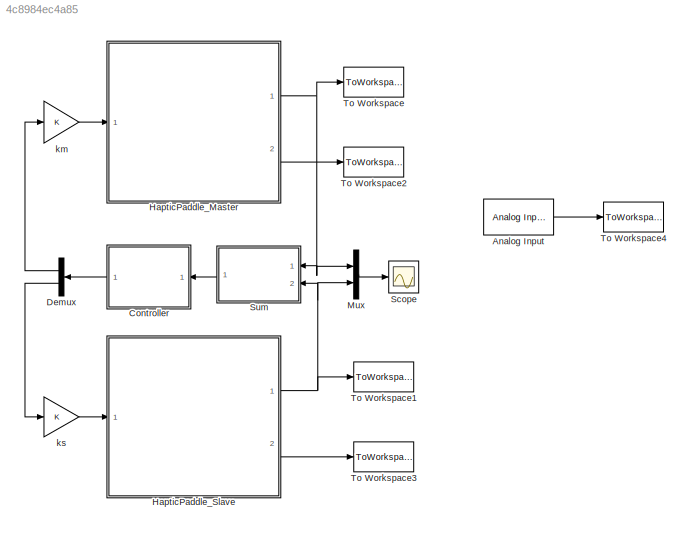
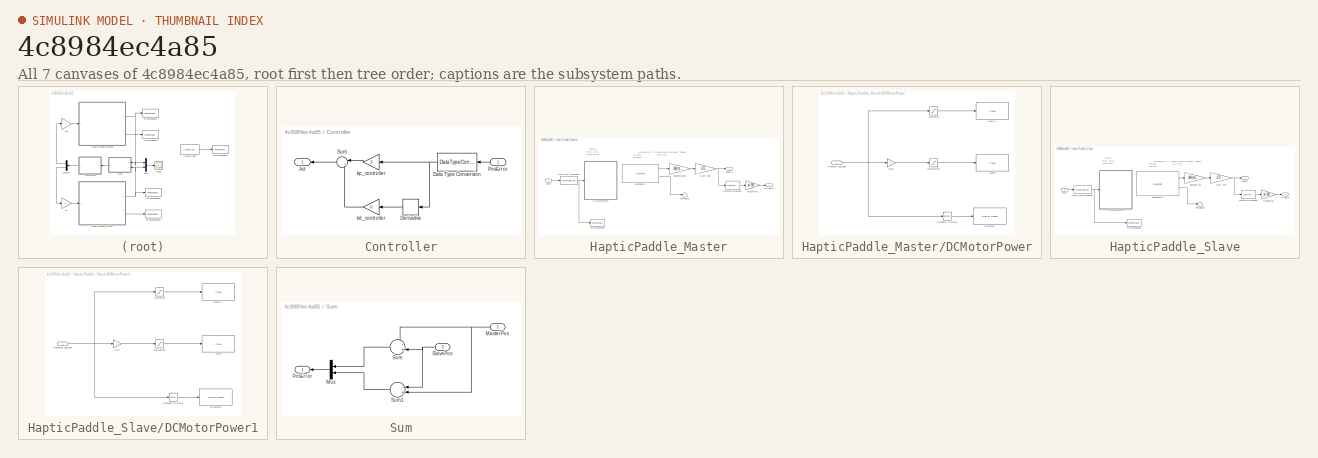
[diagram: thumbnail index - all 7 canvases of the model, root first then tree order]
MODEL slx_4c8984ec4a85
KIND model
CONFIG AbsTol = auto
CONFIG EnableMultiTasking = on
CONFIG FixedStep = 0.005
CONFIG MaxStep = auto
CONFIG MinStep = auto
CONFIG RelTol = 1e-3
CONFIG SampleTimeConstraint = Unconstrained
CONFIG Solver = FixedStepAuto
CONFIG SolverName = FixedStepAuto
CONFIG StartTime = 0.0
CONFIG StopTime = Inf
BLOCK [Reference] Analog Input  REF=arduinolib/Analog Input
  Ports = [0, 1]
  SourceBlock = arduinolib/Analog Input
  SourceProductBaseCode = ARDUINO
  SourceProductName = Simulink Support Package for Arduino Hardware
  SourceType = Arduino Analog Input
BLOCK [SubSystem] Controller
  Ports = [1, 1]
  RequestExecContextInheritance = off
  Variant = off
BLOCK [Outport] Controller/Act
  IconDisplay = Port number
BLOCK [DataTypeConversion] Controller/Data Type Conversion
  RndMeth = Floor
  SaturateOnIntegerOverflow = off
BLOCK [Derivative] Controller/Derivative
BLOCK [Inport] Controller/PosError
  IconDisplay = Port number
BLOCK [Sum] Controller/Sum
  IconShape = round
  InputSameDT = off
  Inputs = |++
  OutDataTypeStr = Inherit: Inherit via internal rule
  Ports = [2, 1]
  SaturateOnIntegerOverflow = off
BLOCK [Gain] Controller/kd_controller
  Gain = 0
  OutDataTypeStr = Inherit: Inherit via internal rule
  ParamDataTypeStr = Inherit: Inherit via internal rule
  SaturateOnIntegerOverflow = off
BLOCK [Gain] Controller/kp_controller
  Gain = 3
  OutDataTypeStr = Inherit: Inherit via internal rule
  ParamDataTypeStr = Inherit: Inherit via internal rule
  SaturateOnIntegerOverflow = off
BLOCK [Demux] Demux
  DisplayOption = bar
  Outputs = 2
  Ports = [1, 2]
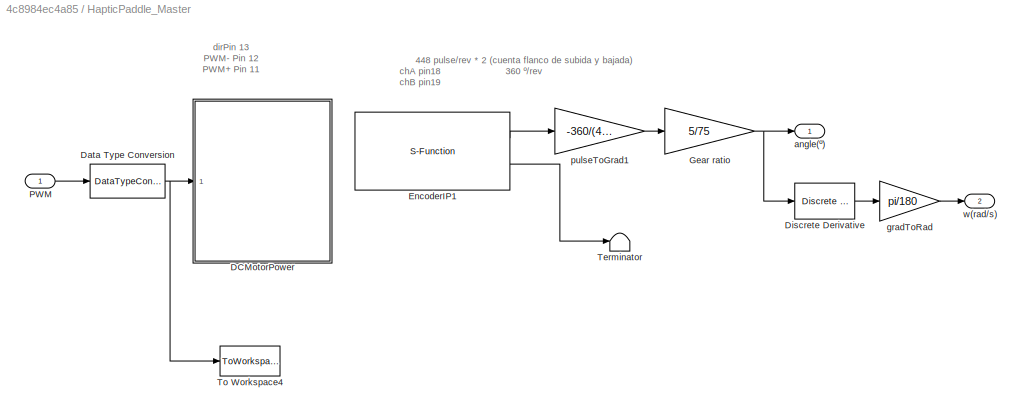
BLOCK [SubSystem] HapticPaddle_Master
  Ports = [1, 2]
  RequestExecContextInheritance = off
  Variant = off
BLOCK [SubSystem] HapticPaddle_Master/DCMotorPower
  Ports = [1]
  RTWFcnNameOpts = Use subsystem name
  RTWFileNameOpts = Use function name
  RTWSystemCode = Reusable function
  RequestExecContextInheritance = off
  Variant = off
BLOCK [Reference] HapticPaddle_Master/DCMotorPower/Compare To Zero1  REF=simulink/Logic and Bit
Operations/Compare
To Zero
  Ports = [1, 1]
  SourceBlock = simulink/Logic and Bit\nOperations/Compare\nTo Zero
  SourceProductBaseCode = SL
  SourceProductName = Simulink
  SourceType = Compare To Zero
BLOCK [Reference] HapticPaddle_Master/DCMotorPower/Direccion  REF=arduinolib/Digital Output
  Ports = [1]
  SourceBlock = arduinolib/Digital Output
  SourceProductBaseCode = ARDUINO
  SourceProductName = Simulink Support Package for Arduino Hardware
  SourceType = Arduino Digital Output
BLOCK [Gain] HapticPaddle_Master/DCMotorPower/Gain
  Gain = -1
  OutDataTypeStr = Inherit: Inherit via internal rule
  ParamDataTypeStr = Inherit: Inherit via internal rule
  SaturateOnIntegerOverflow = off
BLOCK [Reference] HapticPaddle_Master/DCMotorPower/Motor  REF=arduinolib/PWM
  Ports = [1]
  SourceBlock = arduinolib/PWM
  SourceProductBaseCode = ARDUINO
  SourceProductName = Simulink Support Package for Arduino Hardware
  SourceType = Arduino PWM
BLOCK [Reference] HapticPaddle_Master/DCMotorPower/Motor 1  REF=arduinolib/PWM
  Ports = [1]
  SourceBlock = arduinolib/PWM
  SourceProductBaseCode = ARDUINO
  SourceProductName = Simulink Support Package for Arduino Hardware
  SourceType = Arduino PWM
BLOCK [Inport] HapticPaddle_Master/DCMotorPower/Potencia(-255_255) 
  IconDisplay = Port number
  OutDataTypeStr = int16
  VarSizeSig = No
BLOCK [Saturate] HapticPaddle_Master/DCMotorPower/Saturation
  InputPortMap = u0
  LowerLimit = 0
  Ports = [1, 1]
  UpperLimit = 255
BLOCK [Saturate] HapticPaddle_Master/DCMotorPower/Saturation1
  InputPortMap = u0
  LowerLimit = 0
  Ports = [1, 1]
  UpperLimit = 255
BLOCK [DataTypeConversion] HapticPaddle_Master/Data Type Conversion
  OutDataTypeStr = int16
  RndMeth = Floor
  SaturateOnIntegerOverflow = off
BLOCK [Reference] HapticPaddle_Master/Discrete Derivative  REF=simulink/Discrete/Discrete Derivative
  Ports = [1, 1]
  SourceBlock = simulink/Discrete/Discrete Derivative
  SourceProductBaseCode = SL
  SourceProductName = Simulink
  SourceType = Discrete Derivative
BLOCK [S-Function] HapticPaddle_Master/EncoderIP1
  CopyFcn = set_param(gcbh,'LinkStatus','none')
  EnableBusSupport = off
  FunctionName = encoder_code2
  InitFcn = try, set_param(gcb,'FunctionName','encoder_code2'), end
  OpenFcn = sfunctionwizard(gcbh)
  Parameters = uint8(1),uint8(18),uint8(19)
  Ports = [0, 2]
  PreSaveFcn = try, set_param(gcb,'FunctionName','encoder_code2'), end
  SFcnIsStateOwnerBlock = off
  SFunctionDeploymentMode = off
  SFunctionModules = encoder_code2_wrapper
BLOCK [Gain] HapticPaddle_Master/Gear ratio 
  Gain = 5/75
  OutDataTypeStr = Inherit: Inherit via internal rule
  ParamDataTypeStr = Inherit: Inherit via internal rule
  SaturateOnIntegerOverflow = off
BLOCK [Inport] HapticPaddle_Master/PWM
  IconDisplay = Port number
BLOCK [Terminator] HapticPaddle_Master/Terminator
BLOCK [ToWorkspace] HapticPaddle_Master/To Workspace4
  FixptAsFi = on
  MaxDataPoints = inf
  Ports = [1]
  SampleTime = -1
  Save2DSignal = 3-D array (concatenate along third dimension)
  SaveFormat = Structure With Time
  VariableName = MasterPWM
BLOCK [Outport] HapticPaddle_Master/angle(º)
  IconDisplay = Port number
BLOCK [Gain] HapticPaddle_Master/gradToRad
  Gain = pi/180
  OutDataTypeStr = Inherit: Inherit via internal rule
  ParamDataTypeStr = Inherit: Inherit via internal rule
  SaturateOnIntegerOverflow = off
BLOCK [Gain] HapticPaddle_Master/pulseToGrad1
  Gain = -360/(448*2)
  OutDataTypeStr = Inherit: Inherit via internal rule
  ParamDataTypeStr = Inherit: Inherit via internal rule
  SaturateOnIntegerOverflow = off
BLOCK [Outport] HapticPaddle_Master/w(rad//s)
  IconDisplay = Port number
  Port = 2
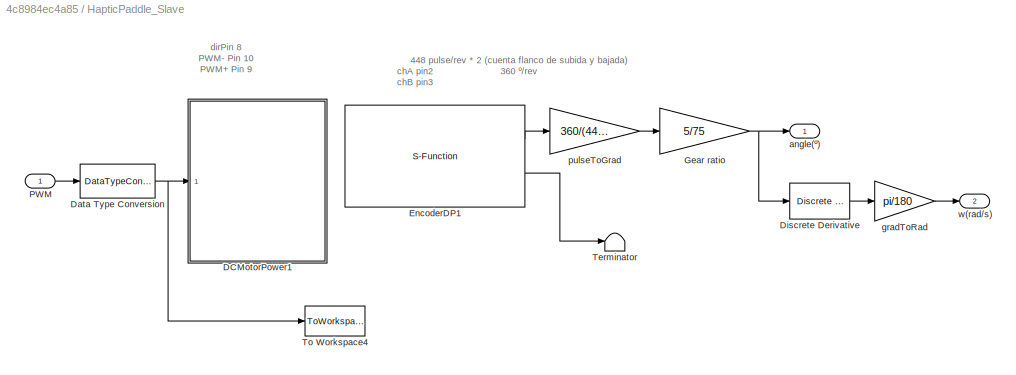
BLOCK [SubSystem] HapticPaddle_Slave
  Ports = [1, 2]
  RequestExecContextInheritance = off
  Variant = off
BLOCK [SubSystem] HapticPaddle_Slave/DCMotorPower1
  Ports = [1]
  RTWFcnNameOpts = Use subsystem name
  RTWFileNameOpts = Use function name
  RTWSystemCode = Reusable function
  RequestExecContextInheritance = off
  Variant = off
BLOCK [Reference] HapticPaddle_Slave/DCMotorPower1/Compare To Zero1  REF=simulink/Logic and Bit
Operations/Compare
To Zero
  Ports = [1, 1]
  SourceBlock = simulink/Logic and Bit\nOperations/Compare\nTo Zero
  SourceProductBaseCode = SL
  SourceProductName = Simulink
  SourceType = Compare To Zero
BLOCK [Reference] HapticPaddle_Slave/DCMotorPower1/Direccion  REF=arduinolib/Digital Output
  Ports = [1]
  SourceBlock = arduinolib/Digital Output
  SourceProductBaseCode = ARDUINO
  SourceProductName = Simulink Support Package for Arduino Hardware
  SourceType = Arduino Digital Output
BLOCK [Gain] HapticPaddle_Slave/DCMotorPower1/Gain
  Gain = -1
  OutDataTypeStr = Inherit: Inherit via internal rule
  ParamDataTypeStr = Inherit: Inherit via internal rule
  SaturateOnIntegerOverflow = off
BLOCK [Reference] HapticPaddle_Slave/DCMotorPower1/Motor  REF=arduinolib/PWM
  Ports = [1]
  SourceBlock = arduinolib/PWM
  SourceProductBaseCode = ARDUINO
  SourceProductName = Simulink Support Package for Arduino Hardware
  SourceType = Arduino PWM
BLOCK [Reference] HapticPaddle_Slave/DCMotorPower1/Motor 1  REF=arduinolib/PWM
  Ports = [1]
  SourceBlock = arduinolib/PWM
  SourceProductBaseCode = ARDUINO
  SourceProductName = Simulink Support Package for Arduino Hardware
  SourceType = Arduino PWM
BLOCK [Inport] HapticPaddle_Slave/DCMotorPower1/Potencia(-255_255) 
  IconDisplay = Port number
  OutDataTypeStr = int16
  VarSizeSig = No
BLOCK [Saturate] HapticPaddle_Slave/DCMotorPower1/Saturation
  InputPortMap = u0
  LowerLimit = 0
  Ports = [1, 1]
  UpperLimit = 255
BLOCK [Saturate] HapticPaddle_Slave/DCMotorPower1/Saturation1
  InputPortMap = u0
  LowerLimit = 0
  Ports = [1, 1]
  UpperLimit = 255
BLOCK [DataTypeConversion] HapticPaddle_Slave/Data Type Conversion
  OutDataTypeStr = int16
  RndMeth = Floor
  SaturateOnIntegerOverflow = off
BLOCK [Reference] HapticPaddle_Slave/Discrete Derivative  REF=simulink/Discrete/Discrete Derivative
  Ports = [1, 1]
  SourceBlock = simulink/Discrete/Discrete Derivative
  SourceProductBaseCode = SL
  SourceProductName = Simulink
  SourceType = Discrete Derivative
BLOCK [S-Function] HapticPaddle_Slave/EncoderDP1
  CopyFcn = set_param(gcbh,'LinkStatus','none')
  EnableBusSupport = off
  FunctionName = encoder_code2
  InitFcn = try, set_param(gcb,'FunctionName','encoder_code2'), end
  OpenFcn = sfunctionwizard(gcbh)
  Parameters = uint8(0),uint8(2),uint8(3)
  Ports = [0, 2]
  PreSaveFcn = try, set_param(gcb,'FunctionName','encoder_code2'), end
  SFcnIsStateOwnerBlock = off
  SFunctionDeploymentMode = off
  SFunctionModules = encoder_code2_wrapper
BLOCK [Gain] HapticPaddle_Slave/Gear ratio 
  Gain = 5/75
  OutDataTypeStr = Inherit: Inherit via internal rule
  ParamDataTypeStr = Inherit: Inherit via internal rule
  SaturateOnIntegerOverflow = off
BLOCK [Inport] HapticPaddle_Slave/PWM
  IconDisplay = Port number
BLOCK [Terminator] HapticPaddle_Slave/Terminator
BLOCK [ToWorkspace] HapticPaddle_Slave/To Workspace4
  FixptAsFi = on
  MaxDataPoints = inf
  Ports = [1]
  SampleTime = -1
  Save2DSignal = 3-D array (concatenate along third dimension)
  SaveFormat = Structure With Time
  VariableName = SlavePWM
BLOCK [Outport] HapticPaddle_Slave/angle(º)
  IconDisplay = Port number
BLOCK [Gain] HapticPaddle_Slave/gradToRad
  Gain = pi/180
  OutDataTypeStr = Inherit: Inherit via internal rule
  ParamDataTypeStr = Inherit: Inherit via internal rule
  SaturateOnIntegerOverflow = off
BLOCK [Gain] HapticPaddle_Slave/pulseToGrad
  Gain = 360/(448*2)
  OutDataTypeStr = Inherit: Inherit via internal rule
  ParamDataTypeStr = Inherit: Inherit via internal rule
  SaturateOnIntegerOverflow = off
BLOCK [Outport] HapticPaddle_Slave/w(rad//s)
  IconDisplay = Port number
  Port = 2
BLOCK [Mux] Mux
  DisplayOption = bar
  Inputs = 2
  Ports = [2, 1]
BLOCK [Scope] Scope
  NumInputPorts = 1
  Ports = [1]
  ScopeSpecificationString = Simulink.scopes.TimeScopeBlockCfg('CurrentConfiguration', extmgr.ConfigurationSet(extmgr.Configuration('Core','General UI',true),extmgr.Configuration('Core','Source UI',true),extmgr.Configuration('Sources','WiredSimulink',true),extmgr.Configuration('Visuals','Time Domain',true,'SerializedDisplays',{struct('MinYLimReal','-1.00000','MaxYLimReal','1.00000','YLabelReal','','MinYLimMag','0.00000','MaxY...<+1364ch>
BLOCK [SubSystem] Sum
  Ports = [2, 1]
  RequestExecContextInheritance = off
  Variant = off
BLOCK [Inport] Sum/MasterPos
  IconDisplay = Port number
BLOCK [Mux] Sum/Mux
  DisplayOption = bar
  Inputs = 2
  Ports = [2, 1]
BLOCK [Outport] Sum/PosError
  IconDisplay = Port number
BLOCK [Inport] Sum/SlavePos
  IconDisplay = Port number
  Port = 2
BLOCK [Sum] Sum/Sum
  IconShape = round
  InputSameDT = off
  Inputs = -+|
  OutDataTypeStr = Inherit: Inherit via internal rule
  Ports = [2, 1]
  SaturateOnIntegerOverflow = off
BLOCK [Sum] Sum/Sum1
  IconShape = round
  InputSameDT = off
  Inputs = -+|
  OutDataTypeStr = Inherit: Inherit via internal rule
  Ports = [2, 1]
  SaturateOnIntegerOverflow = off
BLOCK [ToWorkspace] To Workspace
  FixptAsFi = on
  MaxDataPoints = inf
  Ports = [1]
  SampleTime = -1
  Save2DSignal = 3-D array (concatenate along third dimension)
  SaveFormat = Structure With Time
  VariableName = MasterPos
BLOCK [ToWorkspace] To Workspace1
  FixptAsFi = on
  MaxDataPoints = inf
  Ports = [1]
  SampleTime = -1
  Save2DSignal = 3-D array (concatenate along third dimension)
  SaveFormat = Structure With Time
  VariableName = SlavePos
BLOCK [ToWorkspace] To Workspace2
  FixptAsFi = on
  MaxDataPoints = inf
  Ports = [1]
  SampleTime = -1
  Save2DSignal = 3-D array (concatenate along third dimension)
  SaveFormat = Structure With Time
  VariableName = MasterVel
BLOCK [ToWorkspace] To Workspace3
  FixptAsFi = on
  MaxDataPoints = inf
  Ports = [1]
  SampleTime = -1
  Save2DSignal = 3-D array (concatenate along third dimension)
  SaveFormat = Structure With Time
  VariableName = SlaveVel
BLOCK [ToWorkspace] To Workspace4
  FixptAsFi = on
  MaxDataPoints = inf
  Ports = [1]
  SampleTime = -1
  Save2DSignal = 3-D array (concatenate along third dimension)
  SaveFormat = Structure With Time
  VariableName = MasterForce
BLOCK [Gain] km
  OutDataTypeStr = int16
  ParamDataTypeStr = Inherit: Inherit via internal rule
  SaturateOnIntegerOverflow = off
BLOCK [Gain] ks
  OutDataTypeStr = int16
  ParamDataTypeStr = Inherit: Inherit via internal rule
  SaturateOnIntegerOverflow = off
ANNOTATION HapticPaddle_Master: 448 pulse/rev * 2 (cuenta flanco de subida y bajada) 360 º/rev
ANNOTATION HapticPaddle_Master: chA pin18 chB pin19
ANNOTATION HapticPaddle_Master: dirPin 13 PWM- Pin 12 PWM+ Pin 11
ANNOTATION HapticPaddle_Slave: 448 pulse/rev * 2 (cuenta flanco de subida y bajada) 360 º/rev
ANNOTATION HapticPaddle_Slave: chA pin2 chB pin3
ANNOTATION HapticPaddle_Slave: dirPin 8 PWM- Pin 10 PWM+ Pin 9
LINE Analog Input:1 -> To Workspace4:1
NET Controller/Data Type Conversion:1 -> Controller/Derivative:1, Controller/kp_controller:1
LINE Controller/Derivative:1 -> Controller/kd_controller:1
LINE Controller/PosError:1 -> Controller/Data Type Conversion:1
LINE Controller/Sum:1 -> Controller/Act:1
LINE Controller/kd_controller:1 -> Controller/Sum:2
LINE Controller/kp_controller:1 -> Controller/Sum:1
LINE Controller:1 -> Demux:1
LINE Demux:1 -> km:1
LINE Demux:2 -> ks:1
LINE HapticPaddle_Master/DCMotorPower/Compare To Zero1:1 -> HapticPaddle_Master/DCMotorPower/Direccion:1
LINE HapticPaddle_Master/DCMotorPower/Gain:1 -> HapticPaddle_Master/DCMotorPower/Saturation1:1
NET HapticPaddle_Master/DCMotorPower/Potencia(-255_255) :1 -> HapticPaddle_Master/DCMotorPower/Compare To Zero1:1, HapticPaddle_Master/DCMotorPower/Gain:1, HapticPaddle_Master/DCMotorPower/Saturation:1
LINE HapticPaddle_Master/DCMotorPower/Saturation1:1 -> HapticPaddle_Master/DCMotorPower/Motor:1
LINE HapticPaddle_Master/DCMotorPower/Saturation:1 -> HapticPaddle_Master/DCMotorPower/Motor 1:1
NET HapticPaddle_Master/Data Type Conversion:1 -> HapticPaddle_Master/DCMotorPower:1, HapticPaddle_Master/To Workspace4:1
LINE HapticPaddle_Master/Discrete Derivative:1 -> HapticPaddle_Master/gradToRad:1
LINE HapticPaddle_Master/EncoderIP1:1 -> HapticPaddle_Master/pulseToGrad1:1
LINE HapticPaddle_Master/EncoderIP1:2 -> HapticPaddle_Master/Terminator:1
NET HapticPaddle_Master/Gear ratio :1 -> HapticPaddle_Master/Discrete Derivative:1, HapticPaddle_Master/angle(º):1
LINE HapticPaddle_Master/PWM:1 -> HapticPaddle_Master/Data Type Conversion:1
LINE HapticPaddle_Master/gradToRad:1 -> HapticPaddle_Master/w(rad//s):1
LINE HapticPaddle_Master/pulseToGrad1:1 -> HapticPaddle_Master/Gear ratio :1
NET HapticPaddle_Master:1 -> Mux:1, Sum:1, To Workspace:1
LINE HapticPaddle_Master:2 -> To Workspace2:1
LINE HapticPaddle_Slave/DCMotorPower1/Compare To Zero1:1 -> HapticPaddle_Slave/DCMotorPower1/Direccion:1
LINE HapticPaddle_Slave/DCMotorPower1/Gain:1 -> HapticPaddle_Slave/DCMotorPower1/Saturation1:1
NET HapticPaddle_Slave/DCMotorPower1/Potencia(-255_255) :1 -> HapticPaddle_Slave/DCMotorPower1/Compare To Zero1:1, HapticPaddle_Slave/DCMotorPower1/Gain:1, HapticPaddle_Slave/DCMotorPower1/Saturation:1
LINE HapticPaddle_Slave/DCMotorPower1/Saturation1:1 -> HapticPaddle_Slave/DCMotorPower1/Motor:1
LINE HapticPaddle_Slave/DCMotorPower1/Saturation:1 -> HapticPaddle_Slave/DCMotorPower1/Motor 1:1
NET HapticPaddle_Slave/Data Type Conversion:1 -> HapticPaddle_Slave/DCMotorPower1:1, HapticPaddle_Slave/To Workspace4:1
LINE HapticPaddle_Slave/Discrete Derivative:1 -> HapticPaddle_Slave/gradToRad:1
LINE HapticPaddle_Slave/EncoderDP1:1 -> HapticPaddle_Slave/pulseToGrad:1
LINE HapticPaddle_Slave/EncoderDP1:2 -> HapticPaddle_Slave/Terminator:1
NET HapticPaddle_Slave/Gear ratio :1 -> HapticPaddle_Slave/Discrete Derivative:1, HapticPaddle_Slave/angle(º):1
LINE HapticPaddle_Slave/PWM:1 -> HapticPaddle_Slave/Data Type Conversion:1
LINE HapticPaddle_Slave/gradToRad:1 -> HapticPaddle_Slave/w(rad//s):1
LINE HapticPaddle_Slave/pulseToGrad:1 -> HapticPaddle_Slave/Gear ratio :1
NET HapticPaddle_Slave:1 -> Mux:2, Sum:2, To Workspace1:1
LINE HapticPaddle_Slave:2 -> To Workspace3:1
LINE Mux:1 -> Scope:1
NET Sum/MasterPos:1 -> Sum/Sum1:2, Sum/Sum:1
LINE Sum/Mux:1 -> Sum/PosError:1
NET Sum/SlavePos:1 -> Sum/Sum1:1, Sum/Sum:2
LINE Sum/Sum1:1 -> Sum/Mux:2
LINE Sum/Sum:1 -> Sum/Mux:1
LINE Sum:1 -> Controller:1
LINE km:1 -> HapticPaddle_Master:1
LINE ks:1 -> HapticPaddle_Slave:1
note: NET lines group one-source signal fan-out (src -> all destinations, sorted); 1:1 wires keep LINE
